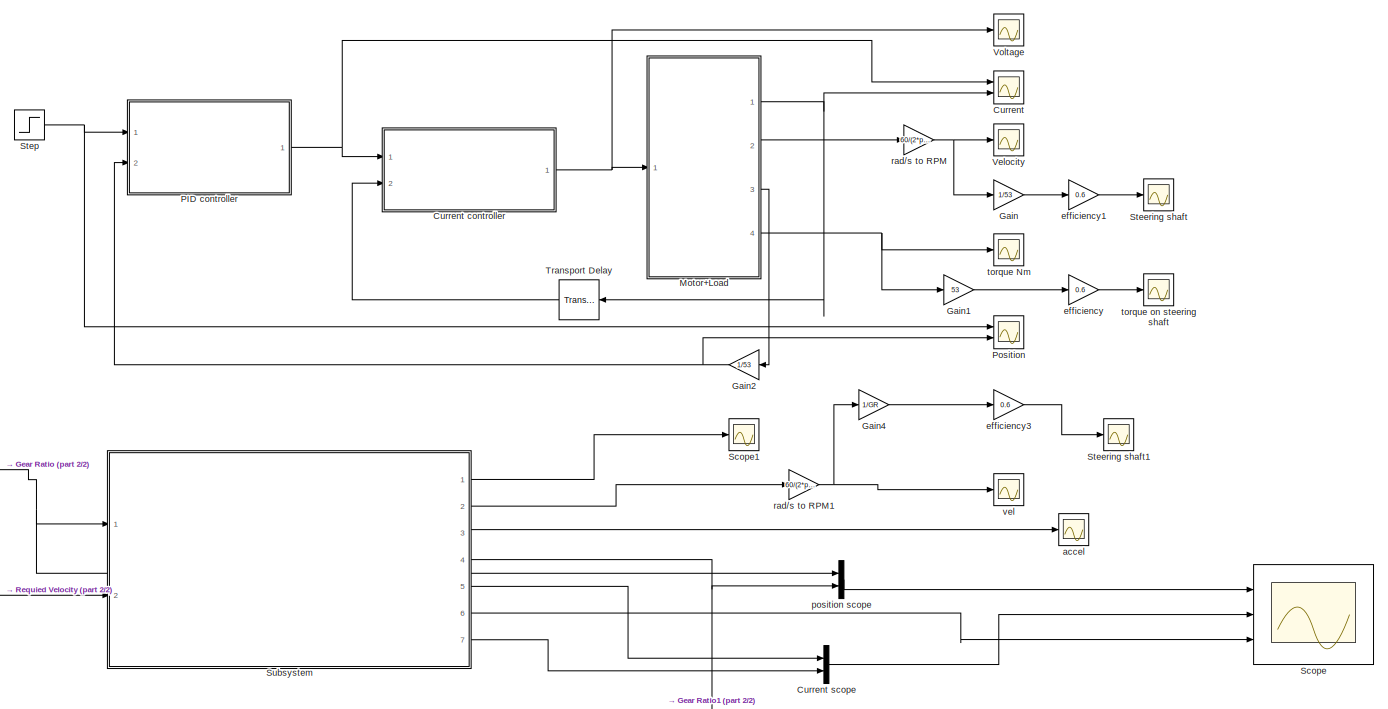
[diagram: root canvas - part 1/2, most of the canvas]
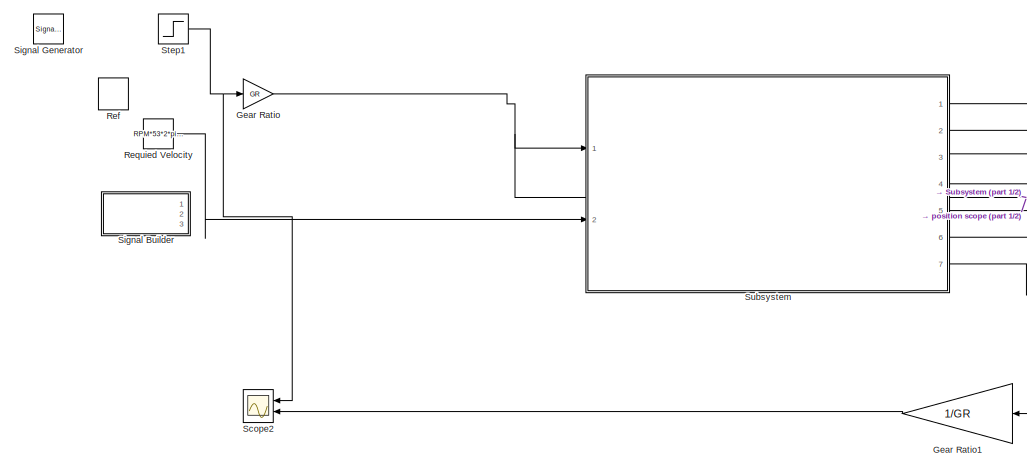
[diagram: root canvas - part 2/2, bottom left region]
MODEL slx_9b552c95322c
KIND model
CONFIG AbsTol = auto
CONFIG EnableMultiTasking = off
CONFIG FixedStep = auto
CONFIG MaxStep = auto
CONFIG MinStep = auto
CONFIG RelTol = 1e-3
CONFIG SampleTimeConstraint = Unconstrained
CONFIG Solver = VariableStepAuto
CONFIG SolverName = VariableStepAuto
CONFIG StartTime = 0.0
CONFIG StopTime = 5
BLOCK [Scope] Current
  Floating = off
  NumInputPorts = 2
  Ports = [2]
  ScopeSpecificationString = Simulink.scopes.TimeScopeBlockCfg('CurrentConfiguration', extmgr.ConfigurationSet(extmgr.Configuration('Core','General UI',true),extmgr.Configuration('Core','Source UI',true),extmgr.Configuration('Sources','WiredSimulink',true,'DataLoggingVariableName','ScopeData2'),extmgr.Configuration('Visuals','Time Domain',true,'SerializedDisplays',{struct('MinYLimReal','-9.0625','MaxYLimReal','9.0625','YLabel...<+1521ch>
BLOCK [SubSystem] Current controller
  Ports = [2, 1]
  RequestExecContextInheritance = off
BLOCK [Sum] Current controller/Add
  IconShape = rectangular
  Inputs = +-
  Ports = [2, 1]
BLOCK [Sum] Current controller/Add1
  IconShape = rectangular
  Inputs = +-
  Ports = [2, 1]
BLOCK [Sum] Current controller/Add2
  IconShape = rectangular
  Ports = [2, 1]
BLOCK [Sum] Current controller/Add3
  IconShape = rectangular
  Inputs = +-
  NameLocation = top
  Ports = [2, 1]
BLOCK [Integrator] Current controller/Integrator
  Ports = [1, 1]
BLOCK [Gain] Current controller/K_I SI1
  Gain = 2
BLOCK [Gain] Current controller/K_P SI
  Gain = 2
BLOCK [Inport] Current controller/Motor actual current
  Port = 2
BLOCK [Saturate] Current controller/Saturation
  LowerLimit = -24
  UpperLimit = 24
BLOCK [Inport] Current controller/current set
BLOCK [Gain] Current controller/gain
  Gain = 3
  NameLocation = top
BLOCK [Outport] Current controller/voltage
BLOCK [Mux] Current scope
  DisplayOption = bar
  Inputs = 2
  Ports = [2, 1]
BLOCK [Gain] Gain
  Gain = 1/53
BLOCK [Gain] Gain1
  Gain = 53
BLOCK [Gain] Gain2
  Gain = 1/53
  NameLocation = top
BLOCK [Gain] Gain4
  Gain = 1/GR
BLOCK [Gain] Gear Ratio
  Gain = GR
BLOCK [Gain] Gear Ratio1
  Gain = 1/GR
  NameLocation = top
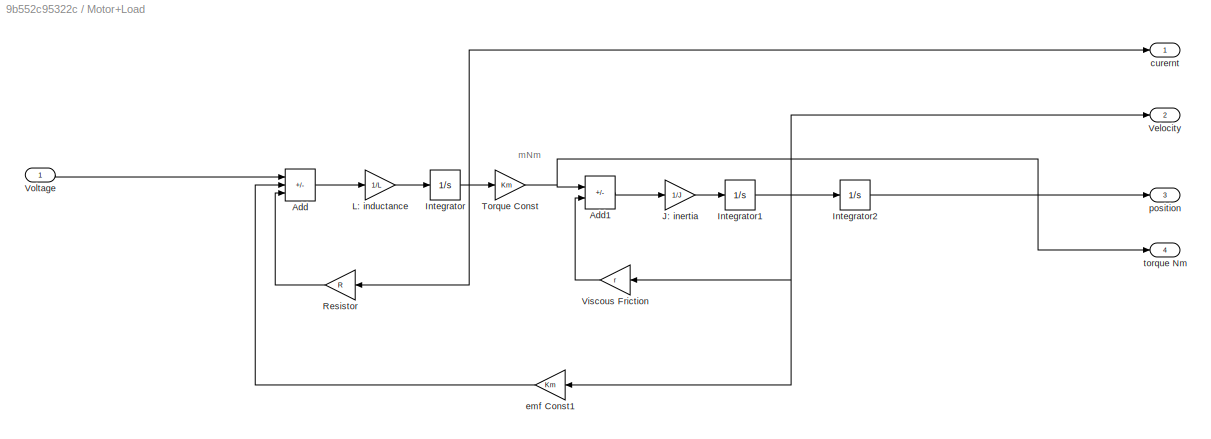
BLOCK [SubSystem] Motor+Load
  Ports = [1, 4]
  RequestExecContextInheritance = off
BLOCK [Sum] Motor+Load/Add
  IconShape = rectangular
  Inputs = +--
  Ports = [3, 1]
BLOCK [Sum] Motor+Load/Add1
  IconShape = rectangular
  Inputs = +-
  Ports = [2, 1]
BLOCK [Integrator] Motor+Load/Integrator
  Ports = [1, 1]
BLOCK [Integrator] Motor+Load/Integrator1
  Ports = [1, 1]
BLOCK [Integrator] Motor+Load/Integrator2
  Ports = [1, 1]
BLOCK [Gain] Motor+Load/J: inertia
  Gain = 1/J
BLOCK [Gain] Motor+Load/L: inductance
  Gain = 1/L
BLOCK [Gain] Motor+Load/Resistor
  Gain = R
  NameLocation = top
BLOCK [Gain] Motor+Load/Torque Const
  Gain = Km
BLOCK [Outport] Motor+Load/Velocity
  Port = 2
BLOCK [Gain] Motor+Load/Viscous Friction
  Gain = r
  NameLocation = top
BLOCK [Inport] Motor+Load/Voltage
BLOCK [Outport] Motor+Load/curernt
BLOCK [Gain] Motor+Load/emf Const1
  Gain = Km
  NameLocation = top
BLOCK [Outport] Motor+Load/position
  Port = 3
BLOCK [Outport] Motor+Load/torque Nm
  Port = 4
BLOCK [SubSystem] PID controller
  Ports = [2, 1]
  RequestExecContextInheritance = off
BLOCK [Sum] PID controller/Add
  IconShape = rectangular
  Inputs = +-
  Ports = [2, 1]
BLOCK [Sum] PID controller/Add1
  IconShape = rectangular
  Inputs = +-
  Ports = [2, 1]
BLOCK [Sum] PID controller/Add2
  IconShape = rectangular
  Ports = [2, 1]
BLOCK [Sum] PID controller/Add3
  IconShape = rectangular
  Inputs = +-
  NameLocation = top
  Ports = [2, 1]
BLOCK [Outport] PID controller/Current out
BLOCK [Integrator] PID controller/Integrator
  Ports = [1, 1]
BLOCK [Gain] PID controller/K_I po
  Gain = 25
BLOCK [Gain] PID controller/K_P po
  Gain = 30
BLOCK [Inport] PID controller/Ref position
BLOCK [Saturate] PID controller/Saturation
  LowerLimit = -7.25
  UpperLimit = 7.25
BLOCK [Inport] PID controller/feedback position
  Port = 2
BLOCK [Gain] PID controller/gain
  NameLocation = top
BLOCK [Scope] Position
  Floating = off
  NumInputPorts = 2
  Ports = [2]
  ScopeSpecificationString = Simulink.scopes.TimeScopeBlockCfg('CurrentConfiguration', extmgr.ConfigurationSet(extmgr.Configuration('Core','General UI',true),extmgr.Configuration('Core','Source UI',true),extmgr.Configuration('Sources','WiredSimulink',true),extmgr.Configuration('Visuals','Time Domain',true,'SerializedDisplays',{struct('MinYLimReal','-0.5599','MaxYLimReal','5.03914','YLabelReal','','MinYLimMag','0.00000','MaxYL...<+1693ch>
BLOCK [DiscretePulseGenerator] Ref
  Amplitude = 242/180*pi
  Period = 5
  Ports = [0, 1]
  PulseType = Time based
  PulseWidth = 50
BLOCK [Constant] Requied Velocity
  Value = RPM*53*2*pi/60
BLOCK [Scope] Scope
  Floating = off
  NumInputPorts = 3
  Ports = [3]
  ScopeSpecificationString = Simulink.scopes.TimeScopeBlockCfg('CurrentConfiguration', extmgr.ConfigurationSet(extmgr.Configuration('Core','General UI',true),extmgr.Configuration('Core','Source UI',true),extmgr.Configuration('Sources','WiredSimulink',true,'DataLoggingVariableName','ScopeData2'),extmgr.Configuration('Visuals','Time Domain',true,'SerializedDisplays',{struct('MinYLimReal','-7.99695','MaxYLimReal','59.85227','YLa...<+3275ch>
BLOCK [Scope] Scope1
  Floating = off
  NumInputPorts = 1
  Ports = [1]
  ScopeSpecificationString = Simulink.scopes.TimeScopeBlockCfg('CurrentConfiguration', extmgr.ConfigurationSet(extmgr.Configuration('Core','General UI',true),extmgr.Configuration('Core','Source UI',true),extmgr.Configuration('Sources','WiredSimulink',true,'DataLoggingVariableName','ScopeData1'),extmgr.Configuration('Visuals','Time Domain',true,'SerializedDisplays',{struct('MinYLimReal','-8.31172','MaxYLimReal','27.59019','YLa...<+1429ch>
BLOCK [Scope] Scope2
  Floating = off
  NameLocation = top
  NumInputPorts = 2
  Ports = [2]
  ScopeSpecificationString = Simulink.scopes.TimeScopeBlockCfg('CurrentConfiguration', extmgr.ConfigurationSet(extmgr.Configuration('Core','General UI',true),extmgr.Configuration('Core','Source UI',true),extmgr.Configuration('Sources','WiredSimulink',true,'DataLoggingVariableName','ScopeData1'),extmgr.Configuration('Visuals','Time Domain',true,'SerializedDisplays',{struct('MinYLimReal','-2.61938','MaxYLimReal','2.61973','YLab...<+1444ch>
BLOCK [SubSystem] Signal Builder
  ClipboardFcn = sigbuilder_block('clipboard');
  CloseFcn = sigbuilder_block('close');
  ContinueFcn = sigbuilder_block('continue');
  CopyFcn = sigbuilder_block('copy');
  DeleteFcn = sigbuilder_block('delete');
  LoadFcn = sigbuilder_block('load');
  MaskHideContents = on
  ModelCloseFcn = sigbuilder_block('modelClose');
  NameChangeFcn = sigbuilder_block('namechange');
  OpenFcn = sigbuilder_block('open',[437.6 199.2 550.4 400 ]);
  PauseFcn = sigbuilder_block('pause');
  Ports = [0, 3]
  PreSaveFcn = sigbuilder_block('preSave');
  RequestExecContextInheritance = off
  StartFcn = sigbuilder_block('start');
  StopFcn = sigbuilder_block('stop');
  Tag = STV Subsys
BLOCK [Demux] Signal Builder/Demux
  DisplayOption = none
  Outputs = 3
  Ports = [1, 3]
  Tag = STV Demux
BLOCK [FromWorkspace] Signal Builder/FromWs
  Tag = STV FromWs
  VariableName = tuvar
BLOCK [Outport] Signal Builder/Signal 1
  Tag = STV Outport
BLOCK [Outport] Signal Builder/Signal 2
  Port = 2
  Tag = STV Outport
BLOCK [Outport] Signal Builder/Signal 3
  Port = 3
  Tag = STV Outport
BLOCK [SignalGenerator] Signal Generator
  Amplitude = 120/180*pi
  Frequency = 0.2
  Ports = [0, 1]
BLOCK [Scope] Steering shaft
  Floating = off
  NumInputPorts = 1
  Ports = [1]
  ScopeSpecificationString = Simulink.scopes.TimeScopeBlockCfg('CurrentConfiguration', extmgr.ConfigurationSet(extmgr.Configuration('Core','General UI',true),extmgr.Configuration('Core','Source UI',true),extmgr.Configuration('Sources','WiredSimulink',true,'DataLoggingVariableName','ScopeData6'),extmgr.Configuration('Visuals','Time Domain',true,'SerializedDisplays',{struct('MinYLimReal','-17.42391','MaxYLimReal','50.0732','YLa...<+1410ch>
BLOCK [Scope] Steering shaft1
  Floating = off
  NumInputPorts = 1
  Ports = [1]
  ScopeSpecificationString = Simulink.scopes.TimeScopeBlockCfg('CurrentConfiguration', extmgr.ConfigurationSet(extmgr.Configuration('Core','General UI',true),extmgr.Configuration('Core','Source UI',true),extmgr.Configuration('Sources','WiredSimulink',true,'DataLoggingVariableName','ScopeData4'),extmgr.Configuration('Visuals','Time Domain',true,'SerializedDisplays',{struct('MinYLimReal','-8.31812','MaxYLimReal','52.33145','YLa...<+1424ch>
BLOCK [Step] Step
  After = 242/180*pi
  SampleTime = 0
  Time = 0
BLOCK [Step] Step1
  SampleTime = 0
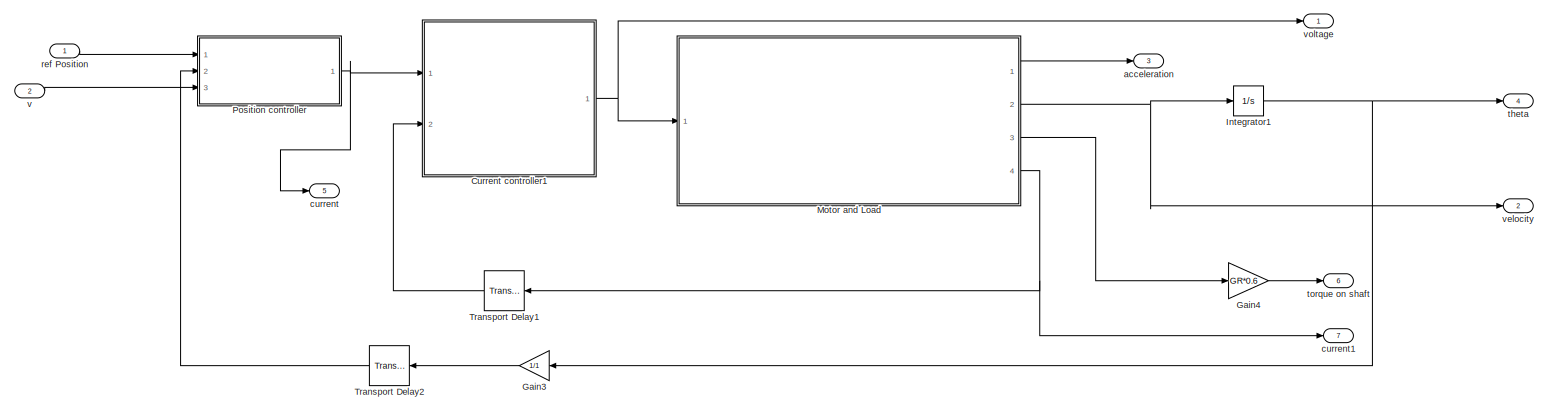
[diagram: Subsystem - part 1/1, most of the canvas]
BLOCK [SubSystem] Subsystem
  Ports = [2, 7]
  RequestExecContextInheritance = off
BLOCK [SubSystem] Subsystem/Current controller1
  Ports = [2, 1]
  RequestExecContextInheritance = off
BLOCK [TransferFcn] Subsystem/Current controller1/AW scheme
  Commented = on
  Denominator = [kp_I ki_I]
  NameLocation = top
  Numerator = [-ki_I]
BLOCK [Sum] Subsystem/Current controller1/Add
  IconShape = rectangular
  Inputs = +-
  Ports = [2, 1]
BLOCK [Sum] Subsystem/Current controller1/Add4
  IconShape = rectangular
  Inputs = +-
  Ports = [2, 1]
BLOCK [Gain] Subsystem/Current controller1/K_P SI1
  Commented = on
  Gain = kp_I
BLOCK [Inport] Subsystem/Current controller1/Motor actual current
  Port = 2
BLOCK [SubSystem] Subsystem/Current controller1/PI controller with AW
  Ports = [1, 1]
  RequestExecContextInheritance = off
BLOCK [Sum] Subsystem/Current controller1/PI controller with AW/Add1
  IconShape = rectangular
  Inputs = +-
  Ports = [2, 1]
BLOCK [Sum] Subsystem/Current controller1/PI controller with AW/Add2
  IconShape = rectangular
  Ports = [2, 1]
BLOCK [Sum] Subsystem/Current controller1/PI controller with AW/Add3
  IconShape = rectangular
  Inputs = +-
  NameLocation = top
  Ports = [2, 1]
BLOCK [Inport] Subsystem/Current controller1/PI controller with AW/Current Error
BLOCK [Integrator] Subsystem/Current controller1/PI controller with AW/Integrator
  Ports = [1, 1]
BLOCK [Gain] Subsystem/Current controller1/PI controller with AW/K_I SI1
  Gain = ki_I
BLOCK [Gain] Subsystem/Current controller1/PI controller with AW/K_P SI
  Gain = kp_I
BLOCK [Saturate] Subsystem/Current controller1/PI controller with AW/Saturation
  LowerLimit = -maxV
  UpperLimit = maxV
BLOCK [Outport] Subsystem/Current controller1/PI controller with AW/Voltage Output
BLOCK [Gain] Subsystem/Current controller1/PI controller with AW/gain
  Gain = ke_I
  NameLocation = top
BLOCK [Inport] Subsystem/Current controller1/current set
BLOCK [Outport] Subsystem/Current controller1/voltage
BLOCK [Gain] Subsystem/Gain3
  Gain = 1/1
  NameLocation = top
BLOCK [Gain] Subsystem/Gain4
  Gain = GR*0.6
BLOCK [Integrator] Subsystem/Integrator1
  Ports = [1, 1]
BLOCK [SubSystem] Subsystem/Motor and Load
  Ports = [1, 4]
  RequestExecContextInheritance = off
BLOCK [Outport] Subsystem/Motor and Load/Acceleration
BLOCK [Outport] Subsystem/Motor and Load/Current out
  Port = 4
BLOCK [Gain] Subsystem/Motor and Load/Gain
  Gain = Ke
  NameLocation = top
BLOCK [Gain] Subsystem/Motor and Load/Gain1
  Gain = Kt
BLOCK [SubSystem] Subsystem/Motor and Load/Load
  Ports = [1, 2]
  RequestExecContextInheritance = off
BLOCK [Outport] Subsystem/Motor and Load/Load/Acceleration
BLOCK [Sum] Subsystem/Motor and Load/Load/Add1
  IconShape = rectangular
  Inputs = +--
  Ports = [3, 1]
BLOCK [Constant] Subsystem/Motor and Load/Load/Fz
  NameLocation = top
  Value = 2550
BLOCK [Gain] Subsystem/Motor and Load/Load/Gain
  Commented = on
  Gain = 0
  NameLocation = top
BLOCK [Gain] Subsystem/Motor and Load/Load/Gain2
  Gain = r
  NameLocation = top
BLOCK [Gain] Subsystem/Motor and Load/Load/Gain3
  Gain = 1/J
BLOCK [Integrator] Subsystem/Motor and Load/Load/Integrator
  Ports = [1, 1]
BLOCK [Inport] Subsystem/Motor and Load/Load/Motor Torque
BLOCK [Scope] Subsystem/Motor and Load/Load/Scope
  Floating = off
  NumInputPorts = 3
  Ports = [3]
  ScopeSpecificationString = Simulink.scopes.TimeScopeBlockCfg('CurrentConfiguration', extmgr.ConfigurationSet(extmgr.Configuration('Core','General UI',true),extmgr.Configuration('Core','Source UI',true),extmgr.Configuration('Sources','WiredSimulink',true,'DataLoggingVariableName','ScopeData1'),extmgr.Configuration('Visuals','Time Domain',true,'SerializedDisplays',{struct('MinYLimReal','0.04422','MaxYLimReal','0.16024','YLabe...<+2858ch>
BLOCK [Scope] Subsystem/Motor and Load/Load/Scope1
  Floating = off
  NumInputPorts = 1
  Ports = [1]
  ScopeSpecificationString = Simulink.scopes.TimeScopeBlockCfg('CurrentConfiguration', extmgr.ConfigurationSet(extmgr.Configuration('Core','General UI',true),extmgr.Configuration('Core','Source UI',true),extmgr.Configuration('Sources','WiredSimulink',true,'DataLoggingVariableName','ScopeData2'),extmgr.Configuration('Visuals','Time Domain',true,'SerializedDisplays',{struct('MinYLimReal','-0.96042','MaxYLimReal','9.14375','YLab...<+1370ch>
BLOCK [SubSystem] Subsystem/Motor and Load/Load/Subsystem
  NameLocation = top
  Ports = [1, 4]
  RequestExecContextInheritance = off
BLOCK [Sum] Subsystem/Motor and Load/Load/Subsystem/Add
  IconShape = rectangular
  NameLocation = top
  Ports = [2, 1]
BLOCK [Outport] Subsystem/Motor and Load/Load/Subsystem/CarVel
  Port = 3
BLOCK [Inport] Subsystem/Motor and Load/Load/Subsystem/Fz
BLOCK [Gain] Subsystem/Motor and Load/Load/Subsystem/Gain
  Gain = 1/GR
  NameLocation = top
BLOCK [SubSystem] Subsystem/Motor and Load/Load/Subsystem/MATLAB Function
  ErrorFcn = Stateflow.Translate.translate
  NameLocation = top
  PermitHierarchicalResolution = ExplicitOnly
  Ports = [2, 3]
  RequestExecContextInheritance = off
  SFBlockType = MATLAB Function
  TreatAsAtomicUnit = on
BLOCK [Demux] Subsystem/Motor and Load/Load/Subsystem/MATLAB Function/ Demux 
  Outputs = 1
  Ports = [1, 1]
BLOCK [S-Function] Subsystem/Motor and Load/Load/Subsystem/MATLAB Function/ SFunction 
  EnableBusSupport = on
  FunctionName = sf_sfun
  PortCounts = [2 4]
  Ports = [2, 4]
  SFcnIsStateOwnerBlock = off
  SFunctionDeploymentMode = off
  Tag = Stateflow S-Function 2
BLOCK [Terminator] Subsystem/Motor and Load/Load/Subsystem/MATLAB Function/ Terminator 
BLOCK [Inport] Subsystem/Motor and Load/Load/Subsystem/MATLAB Function/CarVelocity
  Port = 2
BLOCK [Inport] Subsystem/Motor and Load/Load/Subsystem/MATLAB Function/Fz
BLOCK [Outport] Subsystem/Motor and Load/Load/Subsystem/MATLAB Function/frCoeff
  Port = 2
BLOCK [Outport] Subsystem/Motor and Load/Load/Subsystem/MATLAB Function/frForce
  Port = 3
BLOCK [Outport] Subsystem/Motor and Load/Load/Subsystem/MATLAB Function/t_fr
BLOCK [SubSystem] Subsystem/Motor and Load/Load/Subsystem/Signal Builder
  ClipboardFcn = sigbuilder_block('clipboard');
  CloseFcn = sigbuilder_block('close');
  ContinueFcn = sigbuilder_block('continue');
  CopyFcn = sigbuilder_block('copy');
  DeleteFcn = sigbuilder_block('delete');
  LoadFcn = sigbuilder_block('load');
  MaskHideContents = on
  ModelCloseFcn = sigbuilder_block('modelClose');
  NameChangeFcn = sigbuilder_block('namechange');
  NameLocation = top
  OpenFcn = sigbuilder_block('open',[437.6 199.2 550.4 400 ]);
  PauseFcn = sigbuilder_block('pause');
  Ports = [0, 2]
  PreSaveFcn = sigbuilder_block('preSave');
  RequestExecContextInheritance = off
  StartFcn = sigbuilder_block('start');
  StopFcn = sigbuilder_block('stop');
  Tag = STV Subsys
BLOCK [Demux] Subsystem/Motor and Load/Load/Subsystem/Signal Builder/Demux
  DisplayOption = none
  Outputs = 2
  Ports = [1, 2]
  Tag = STV Demux
BLOCK [FromWorkspace] Subsystem/Motor and Load/Load/Subsystem/Signal Builder/FromWs
  Tag = STV FromWs
  VariableName = tuvar
BLOCK [Outport] Subsystem/Motor and Load/Load/Subsystem/Signal Builder/Signal 1
  Tag = STV Outport
BLOCK [Outport] Subsystem/Motor and Load/Load/Subsystem/Signal Builder/Signal 2
  Port = 2
  Tag = STV Outport
BLOCK [Outport] Subsystem/Motor and Load/Load/Subsystem/frCoeff
  Port = 2
BLOCK [Outport] Subsystem/Motor and Load/Load/Subsystem/frForce
  Port = 4
BLOCK [Outport] Subsystem/Motor and Load/Load/Subsystem/t_fr
BLOCK [Outport] Subsystem/Motor and Load/Load/Velocity
  Port = 2
BLOCK [Constant] Subsystem/Motor and Load/Load/friction torque
  Commented = on
  NameLocation = top
  Value = 5/GR
BLOCK [SubSystem] Subsystem/Motor and Load/Motor Model
  Ports = [2, 1]
  RequestExecContextInheritance = off
BLOCK [Sum] Subsystem/Motor and Load/Motor Model/Add
  IconShape = rectangular
  Inputs = +-
  Ports = [2, 1]
BLOCK [Outport] Subsystem/Motor and Load/Motor Model/Current out
BLOCK [Saturate] Subsystem/Motor and Load/Motor Model/Saturation
  LowerLimit = -10/sqrt(2)
  UpperLimit = 10/sqrt(2)
BLOCK [TransferFcn] Subsystem/Motor and Load/Motor Model/Transfer Fcn
  Denominator = [L R]
BLOCK [Inport] Subsystem/Motor and Load/Motor Model/Voltage
BLOCK [Inport] Subsystem/Motor and Load/Motor Model/back emf
  Port = 2
BLOCK [Outport] Subsystem/Motor and Load/Motor Torque
  Port = 3
BLOCK [Outport] Subsystem/Motor and Load/Velocity
  Port = 2
BLOCK [Inport] Subsystem/Motor and Load/Voltage
BLOCK [SubSystem] Subsystem/Position controller
  Ports = [3, 1]
  RequestExecContextInheritance = off
BLOCK [Sum] Subsystem/Position controller/Add
  IconShape = rectangular
  Ports = [2, 1]
BLOCK [Gain] Subsystem/Position controller/Feedforward V gain
  Gain = r/Km
BLOCK [Reference] Subsystem/Position controller/PID  REF=simulink/Continuous/PID Controller
  Commented = on
  Ports = [1, 1]
  SourceBlock = simulink/Continuous/PID Controller
  SourceProductBaseCode = SL
  SourceType = PID 1dof
BLOCK [SubSystem] Subsystem/Position controller/PID + AW
  Ports = [1, 1]
  RequestExecContextInheritance = off
BLOCK [Sum] Subsystem/Position controller/PID + AW/Add
  IconShape = rectangular
  Inputs = +++
  Ports = [3, 1]
BLOCK [TransferFcn] Subsystem/Position controller/PID + AW/D
  Denominator = [1 N]
  Numerator = [kd 0]
BLOCK [Gain] Subsystem/Position controller/PID + AW/Gain
  Gain = ki/kp
  NameLocation = top
BLOCK [Gain] Subsystem/Position controller/PID + AW/I
  Gain = ki
BLOCK [Integrator] Subsystem/Position controller/PID + AW/Integrator
  Ports = [1, 1]
BLOCK [Gain] Subsystem/Position controller/PID + AW/P
  Gain = kp
BLOCK [Saturate] Subsystem/Position controller/PID + AW/Saturation
  LowerLimit = -maxI
  UpperLimit = maxI
BLOCK [Sum] Subsystem/Position controller/PID + AW/Sum
  Inputs = |+-
  NameLocation = left
  Ports = [2, 1]
BLOCK [Sum] Subsystem/Position controller/PID + AW/Sum1
  Inputs = |+-
  Ports = [2, 1]
BLOCK [Outport] Subsystem/Position controller/PID + AW/control effort
BLOCK [Inport] Subsystem/Position controller/PID + AW/error
BLOCK [Scope] Subsystem/Position controller/Scope
  Floating = off
  NumInputPorts = 2
  Ports = [2]
  ScopeSpecificationString = Simulink.scopes.TimeScopeBlockCfg('CurrentConfiguration', extmgr.ConfigurationSet(extmgr.Configuration('Core','General UI',true),extmgr.Configuration('Core','Source UI',true),extmgr.Configuration('Sources','WiredSimulink',true,'DataLoggingVariableName','ScopeData6'),extmgr.Configuration('Visuals','Time Domain',true,'SerializedDisplays',{struct('MinYLimReal','-8.77848','MaxYLimReal','8.83213','YLab...<+1383ch>
BLOCK [Sum] Subsystem/Position controller/Sum
  Inputs = |+-
  Ports = [2, 1]
BLOCK [Outport] Subsystem/Position controller/current
BLOCK [Inport] Subsystem/Position controller/position feedback
  Port = 2
BLOCK [Inport] Subsystem/Position controller/ref Position
BLOCK [Inport] Subsystem/Position controller/v
  Port = 3
BLOCK [TransportDelay] Subsystem/Transport Delay1
  DelayTime = 0.06/1000
  NameLocation = top
  Ports = [1, 1]
BLOCK [TransportDelay] Subsystem/Transport Delay2
  DelayTime = 0.4/1000
  NameLocation = top
  Ports = [1, 1]
BLOCK [Outport] Subsystem/acceleration
  Port = 3
BLOCK [Outport] Subsystem/current
  Port = 5
BLOCK [Outport] Subsystem/current1
  Port = 7
BLOCK [Inport] Subsystem/ref Position
BLOCK [Outport] Subsystem/theta
  Port = 4
BLOCK [Outport] Subsystem/torque on shaft
  Port = 6
BLOCK [Inport] Subsystem/v
  Port = 2
BLOCK [Outport] Subsystem/velocity
  Port = 2
BLOCK [Outport] Subsystem/voltage
BLOCK [TransportDelay] Transport Delay
  DelayTime = 0.06/1000
  NameLocation = top
  Ports = [1, 1]
BLOCK [Scope] Velocity
  Floating = off
  NumInputPorts = 1
  Ports = [1]
  ScopeSpecificationString = Simulink.scopes.TimeScopeBlockCfg('CurrentConfiguration', extmgr.ConfigurationSet(extmgr.Configuration('Core','General UI',true),extmgr.Configuration('Core','Source UI',true),extmgr.Configuration('Sources','WiredSimulink',true,'DataLoggingVariableName','ScopeData1'),extmgr.Configuration('Visuals','Time Domain',true,'SerializedDisplays',{struct('MinYLimReal','-1539.023','MaxYLimReal','4422.89835','...<+1432ch>
BLOCK [Scope] Voltage
  Floating = off
  NumInputPorts = 1
  Ports = [1]
  ScopeSpecificationString = Simulink.scopes.TimeScopeBlockCfg('CurrentConfiguration', extmgr.ConfigurationSet(extmgr.Configuration('Core','General UI',true),extmgr.Configuration('Core','Source UI',true),extmgr.Configuration('Sources','WiredSimulink',true,'DataLoggingVariableName','ScopeData3'),extmgr.Configuration('Visuals','Time Domain',true,'SerializedDisplays',{struct('MinYLimReal','-8.60115','MaxYLimReal','24.59981','YLa...<+1436ch>
BLOCK [Scope] accel
  Floating = off
  NumInputPorts = 1
  Ports = [1]
  ScopeSpecificationString = Simulink.scopes.TimeScopeBlockCfg('CurrentConfiguration', extmgr.ConfigurationSet(extmgr.Configuration('Core','General UI',true),extmgr.Configuration('Core','Source UI',true),extmgr.Configuration('Sources','WiredSimulink',true,'DataLoggingVariableName','ScopeData2'),extmgr.Configuration('Visuals','Time Domain',true,'SerializedDisplays',{struct('MinYLimReal','-10825.83299','MaxYLimReal','8682.67593...<+1441ch>
BLOCK [Gain] efficiency
  Gain = 0.6
BLOCK [Gain] efficiency1
  Gain = 0.6
BLOCK [Gain] efficiency3
  Gain = 0.6
BLOCK [Mux] position scope
  DisplayOption = bar
  Inputs = 2
  Ports = [2, 1]
BLOCK [Gain] rad//s to RPM
  Gain = 60/(2*pi)
BLOCK [Gain] rad//s to RPM1
  Gain = 60/(2*pi)
BLOCK [Scope] torque Nm
  Floating = off
  NumInputPorts = 1
  Ports = [1]
  ScopeSpecificationString = Simulink.scopes.TimeScopeBlockCfg('CurrentConfiguration', extmgr.ConfigurationSet(extmgr.Configuration('Core','General UI',true),extmgr.Configuration('Core','Source UI',true),extmgr.Configuration('Sources','WiredSimulink',true,'DataLoggingVariableName','ScopeData4'),extmgr.Configuration('Visuals','Time Domain',true,'SerializedDisplays',{struct('MinYLimReal','-0.41383','MaxYLimReal','0.41875','YLab...<+1414ch>
BLOCK [Scope] torque on steering shaft
  Floating = off
  NumInputPorts = 1
  Ports = [1]
  ScopeSpecificationString = Simulink.scopes.TimeScopeBlockCfg('CurrentConfiguration', extmgr.ConfigurationSet(extmgr.Configuration('Core','General UI',true),extmgr.Configuration('Core','Source UI',true),extmgr.Configuration('Sources','WiredSimulink',true,'DataLoggingVariableName','ScopeData7'),extmgr.Configuration('Visuals','Time Domain',true,'SerializedDisplays',{struct('MinYLimReal','-13.1599','MaxYLimReal','13.31629','YLa...<+1416ch>
BLOCK [Scope] vel
  Floating = off
  NumInputPorts = 1
  Ports = [1]
  ScopeSpecificationString = Simulink.scopes.TimeScopeBlockCfg('CurrentConfiguration', extmgr.ConfigurationSet(extmgr.Configuration('Core','General UI',true),extmgr.Configuration('Core','Source UI',true),extmgr.Configuration('Sources','WiredSimulink',true,'DataLoggingVariableName','ScopeData1'),extmgr.Configuration('Visuals','Time Domain',true,'SerializedDisplays',{struct('MinYLimReal','-3211.90307','MaxYLimReal','3319.60547'...<+1463ch>
ANNOTATION Current controller: e_s
ANNOTATION Motor+Load: mNm
ANNOTATION PID controller: e_s
ANNOTATION Subsystem/Current controller1/PI controller with AW: e_s
LINE Current controller/Add1:1 -> Current controller/Integrator:1
NET Current controller/Add2:1 -> Current controller/Add3:1, Current controller/Saturation:1
LINE Current controller/Add3:1 -> Current controller/gain:1
NET Current controller/Add:1 -> Current controller/K_I SI1:1, Current controller/K_P SI:1
LINE Current controller/Integrator:1 -> Current controller/Add2:2
LINE Current controller/K_I SI1:1 -> Current controller/Add1:1
LINE Current controller/K_P SI:1 -> Current controller/Add2:1
LINE Current controller/Motor actual current:1 -> Current controller/Add:2
NET Current controller/Saturation:1 -> Current controller/Add3:2, Current controller/voltage:1
LINE Current controller/current set:1 -> Current controller/Add:1
LINE Current controller/gain:1 -> Current controller/Add1:2
NET Current controller:1 -> Motor+Load:1, Voltage:1
LINE Current scope:1 -> Scope:2
LINE Gain1:1 -> efficiency:1
NET Gain2:1 -> PID controller:2, Position:2
LINE Gain4:1 -> efficiency3:1
LINE Gain:1 -> efficiency1:1
LINE Gear Ratio1:1 -> Scope2:2
NET Gear Ratio:1 -> Subsystem:1, position scope:1
LINE Motor+Load/Add1:1 -> Motor+Load/J: inertia:1
LINE Motor+Load/Add:1 -> Motor+Load/L: inductance:1
NET Motor+Load/Integrator1:1 -> Motor+Load/Integrator2:1, Motor+Load/Velocity:1, Motor+Load/Viscous Friction:1, Motor+Load/emf Const1:1
LINE Motor+Load/Integrator2:1 -> Motor+Load/position:1
NET Motor+Load/Integrator:1 -> Motor+Load/Resistor:1, Motor+Load/Torque Const:1, Motor+Load/curernt:1
LINE Motor+Load/J: inertia:1 -> Motor+Load/Integrator1:1
LINE Motor+Load/L: inductance:1 -> Motor+Load/Integrator:1
LINE Motor+Load/Resistor:1 -> Motor+Load/Add:3
NET Motor+Load/Torque Const:1 -> Motor+Load/Add1:1, Motor+Load/torque Nm:1
LINE Motor+Load/Viscous Friction:1 -> Motor+Load/Add1:2
LINE Motor+Load/Voltage:1 -> Motor+Load/Add:1
LINE Motor+Load/emf Const1:1 -> Motor+Load/Add:2
NET Motor+Load:1 -> Current:2, Transport Delay:1
LINE Motor+Load:2 -> rad//s to RPM:1
LINE Motor+Load:3 -> Gain2:1
NET Motor+Load:4 -> Gain1:1, torque Nm:1
LINE PID controller/Add1:1 -> PID controller/Integrator:1
NET PID controller/Add2:1 -> PID controller/Add3:1, PID controller/Saturation:1
LINE PID controller/Add3:1 -> PID controller/gain:1
NET PID controller/Add:1 -> PID controller/K_I po:1, PID controller/K_P po:1
LINE PID controller/Integrator:1 -> PID controller/Add2:2
LINE PID controller/K_I po:1 -> PID controller/Add1:1
LINE PID controller/K_P po:1 -> PID controller/Add2:1
LINE PID controller/Ref position:1 -> PID controller/Add:1
NET PID controller/Saturation:1 -> PID controller/Add3:2, PID controller/Current out:1
LINE PID controller/feedback position:1 -> PID controller/Add:2
LINE PID controller/gain:1 -> PID controller/Add1:2
NET PID controller:1 -> Current controller:1, Current:1
LINE Requied Velocity:1 -> Subsystem:2
NET Step1:1 -> Gear Ratio:1, Scope2:1
NET Step:1 -> PID controller:1, Position:1
LINE Subsystem/Current controller1/Add4:1 -> Subsystem/Current controller1/K_P SI1:1
LINE Subsystem/Current controller1/Add:1 -> Subsystem/Current controller1/PI controller with AW:1
NET Subsystem/Current controller1/Motor actual current:1 -> Subsystem/Current controller1/Add4:2, Subsystem/Current controller1/Add:2
LINE Subsystem/Current controller1/PI controller with AW/Add1:1 -> Subsystem/Current controller1/PI controller with AW/Integrator:1
NET Subsystem/Current controller1/PI controller with AW/Add2:1 -> Subsystem/Current controller1/PI controller with AW/Add3:1, Subsystem/Current controller1/PI controller with AW/Saturation:1
LINE Subsystem/Current controller1/PI controller with AW/Add3:1 -> Subsystem/Current controller1/PI controller with AW/gain:1
NET Subsystem/Current controller1/PI controller with AW/Current Error:1 -> Subsystem/Current controller1/PI controller with AW/K_I SI1:1, Subsystem/Current controller1/PI controller with AW/K_P SI:1
LINE Subsystem/Current controller1/PI controller with AW/Integrator:1 -> Subsystem/Current controller1/PI controller with AW/Add2:2
LINE Subsystem/Current controller1/PI controller with AW/K_I SI1:1 -> Subsystem/Current controller1/PI controller with AW/Add1:1
LINE Subsystem/Current controller1/PI controller with AW/K_P SI:1 -> Subsystem/Current controller1/PI controller with AW/Add2:1
NET Subsystem/Current controller1/PI controller with AW/Saturation:1 -> Subsystem/Current controller1/PI controller with AW/Add3:2, Subsystem/Current controller1/PI controller with AW/Voltage Output:1
LINE Subsystem/Current controller1/PI controller with AW/gain:1 -> Subsystem/Current controller1/PI controller with AW/Add1:2
LINE Subsystem/Current controller1/PI controller with AW:1 -> Subsystem/Current controller1/voltage:1
NET Subsystem/Current controller1/current set:1 -> Subsystem/Current controller1/Add4:1, Subsystem/Current controller1/Add:1
NET Subsystem/Current controller1:1 -> Subsystem/Motor and Load:1, Subsystem/voltage:1
LINE Subsystem/Gain3:1 -> Subsystem/Transport Delay2:1
LINE Subsystem/Gain4:1 -> Subsystem/torque on shaft:1
NET Subsystem/Integrator1:1 -> Subsystem/Gain3:1, Subsystem/theta:1
NET Subsystem/Motor and Load/Gain1:1 -> Subsystem/Motor and Load/Load:1, Subsystem/Motor and Load/Motor Torque:1
LINE Subsystem/Motor and Load/Gain:1 -> Subsystem/Motor and Load/Motor Model:2
LINE Subsystem/Motor and Load/Load/Add1:1 -> Subsystem/Motor and Load/Load/Gain3:1
LINE Subsystem/Motor and Load/Load/Fz:1 -> Subsystem/Motor and Load/Load/Subsystem:1
LINE Subsystem/Motor and Load/Load/Gain2:1 -> Subsystem/Motor and Load/Load/Add1:2
NET Subsystem/Motor and Load/Load/Gain3:1 -> Subsystem/Motor and Load/Load/Acceleration:1, Subsystem/Motor and Load/Load/Integrator:1
NET Subsystem/Motor and Load/Load/Integrator:1 -> Subsystem/Motor and Load/Load/Gain2:1, Subsystem/Motor and Load/Load/Velocity:1
LINE Subsystem/Motor and Load/Load/Motor Torque:1 -> Subsystem/Motor and Load/Load/Add1:1
NET Subsystem/Motor and Load/Load/Subsystem/Add:1 -> Subsystem/Motor and Load/Load/Subsystem/CarVel:1, Subsystem/Motor and Load/Load/Subsystem/MATLAB Function:2
LINE Subsystem/Motor and Load/Load/Subsystem/Fz:1 -> Subsystem/Motor and Load/Load/Subsystem/MATLAB Function:1
LINE Subsystem/Motor and Load/Load/Subsystem/Gain:1 -> Subsystem/Motor and Load/Load/Subsystem/t_fr:1
LINE Subsystem/Motor and Load/Load/Subsystem/MATLAB Function:1 -> Subsystem/Motor and Load/Load/Subsystem/Gain:1
LINE Subsystem/Motor and Load/Load/Subsystem/MATLAB Function:2 -> Subsystem/Motor and Load/Load/Subsystem/frCoeff:1
LINE Subsystem/Motor and Load/Load/Subsystem/MATLAB Function:3 -> Subsystem/Motor and Load/Load/Subsystem/frForce:1
LINE Subsystem/Motor and Load/Load/Subsystem/Signal Builder:1 -> Subsystem/Motor and Load/Load/Subsystem/Add:1
LINE Subsystem/Motor and Load/Load/Subsystem/Signal Builder:2 -> Subsystem/Motor and Load/Load/Subsystem/Add:2
NET Subsystem/Motor and Load/Load/Subsystem:1 -> Subsystem/Motor and Load/Load/Add1:3, Subsystem/Motor and Load/Load/Scope:1
LINE Subsystem/Motor and Load/Load/Subsystem:2 -> Subsystem/Motor and Load/Load/Scope:2
LINE Subsystem/Motor and Load/Load/Subsystem:3 -> Subsystem/Motor and Load/Load/Scope1:1
LINE Subsystem/Motor and Load/Load/Subsystem:4 -> Subsystem/Motor and Load/Load/Scope:3
LINE Subsystem/Motor and Load/Load/friction torque:1 -> Subsystem/Motor and Load/Load/Gain:1
LINE Subsystem/Motor and Load/Load:1 -> Subsystem/Motor and Load/Acceleration:1
NET Subsystem/Motor and Load/Load:2 -> Subsystem/Motor and Load/Gain:1, Subsystem/Motor and Load/Velocity:1
LINE Subsystem/Motor and Load/Motor Model/Add:1 -> Subsystem/Motor and Load/Motor Model/Transfer Fcn:1
LINE Subsystem/Motor and Load/Motor Model/Saturation:1 -> Subsystem/Motor and Load/Motor Model/Current out:1
LINE Subsystem/Motor and Load/Motor Model/Transfer Fcn:1 -> Subsystem/Motor and Load/Motor Model/Saturation:1
LINE Subsystem/Motor and Load/Motor Model/Voltage:1 -> Subsystem/Motor and Load/Motor Model/Add:1
LINE Subsystem/Motor and Load/Motor Model/back emf:1 -> Subsystem/Motor and Load/Motor Model/Add:2
NET Subsystem/Motor and Load/Motor Model:1 -> Subsystem/Motor and Load/Current out:1, Subsystem/Motor and Load/Gain1:1
LINE Subsystem/Motor and Load/Voltage:1 -> Subsystem/Motor and Load/Motor Model:1
LINE Subsystem/Motor and Load:1 -> Subsystem/acceleration:1
NET Subsystem/Motor and Load:2 -> Subsystem/Integrator1:1, Subsystem/velocity:1
LINE Subsystem/Motor and Load:3 -> Subsystem/Gain4:1
NET Subsystem/Motor and Load:4 -> Subsystem/Transport Delay1:1, Subsystem/current1:1
NET Subsystem/Position controller/Add:1 -> Subsystem/Position controller/Scope:1, Subsystem/Position controller/current:1
NET Subsystem/Position controller/Feedforward V gain:1 -> Subsystem/Position controller/Add:1, Subsystem/Position controller/Scope:2
NET Subsystem/Position controller/PID + AW/Add:1 -> Subsystem/Position controller/PID + AW/Saturation:1, Subsystem/Position controller/PID + AW/Sum:1
LINE Subsystem/Position controller/PID + AW/D:1 -> Subsystem/Position controller/PID + AW/Add:2
LINE Subsystem/Position controller/PID + AW/Gain:1 -> Subsystem/Position controller/PID + AW/Sum1:2
LINE Subsystem/Position controller/PID + AW/I:1 -> Subsystem/Position controller/PID + AW/Sum1:1
LINE Subsystem/Position controller/PID + AW/Integrator:1 -> Subsystem/Position controller/PID + AW/Add:3
LINE Subsystem/Position controller/PID + AW/P:1 -> Subsystem/Position controller/PID + AW/Add:1
NET Subsystem/Position controller/PID + AW/Saturation:1 -> Subsystem/Position controller/PID + AW/Sum:2, Subsystem/Position controller/PID + AW/control effort:1
LINE Subsystem/Position controller/PID + AW/Sum1:1 -> Subsystem/Position controller/PID + AW/Integrator:1
LINE Subsystem/Position controller/PID + AW/Sum:1 -> Subsystem/Position controller/PID + AW/Gain:1
NET Subsystem/Position controller/PID + AW/error:1 -> Subsystem/Position controller/PID + AW/D:1, Subsystem/Position controller/PID + AW/I:1, Subsystem/Position controller/PID + AW/P:1
LINE Subsystem/Position controller/PID + AW:1 -> Subsystem/Position controller/Add:2
LINE Subsystem/Position controller/Sum:1 -> Subsystem/Position controller/PID + AW:1
LINE Subsystem/Position controller/position feedback:1 -> Subsystem/Position controller/Sum:2
LINE Subsystem/Position controller/ref Position:1 -> Subsystem/Position controller/Sum:1
LINE Subsystem/Position controller/v:1 -> Subsystem/Position controller/Feedforward V gain:1
NET Subsystem/Position controller:1 -> Subsystem/Current controller1:1, Subsystem/current:1
LINE Subsystem/Transport Delay1:1 -> Subsystem/Current controller1:2
LINE Subsystem/Transport Delay2:1 -> Subsystem/Position controller:2
LINE Subsystem/ref Position:1 -> Subsystem/Position controller:1
LINE Subsystem/v:1 -> Subsystem/Position controller:3
LINE Subsystem:1 -> Scope1:1
LINE Subsystem:2 -> rad//s to RPM1:1
LINE Subsystem:3 -> accel:1
NET Subsystem:4 -> Gear Ratio1:1, position scope:2
LINE Subsystem:5 -> Current scope:1
LINE Subsystem:6 -> Scope:3
LINE Subsystem:7 -> Current scope:2
LINE Transport Delay:1 -> Current controller:2
LINE efficiency1:1 -> Steering shaft:1
LINE efficiency3:1 -> Steering shaft1:1
LINE efficiency:1 -> torque on steering shaft:1
LINE position scope:1 -> Scope:1
NET rad//s to RPM1:1 -> Gain4:1, vel:1
NET rad//s to RPM:1 -> Gain:1, Velocity:1
note: NET lines group one-source signal fan-out (src -> all destinations, sorted); 1:1 wires keep LINE
CHART Subsystem/Motor
and Load/Load/Subsystem/MATLAB Function states=1 transitions=1
  STATE_LABEL 'eML_blk_kernel()'
  STATE_LABEL 'SCRIPT:\nfunction [t_fr,frCoeff, frForce] = frictionTorqueOnShaft(Fz,CarVelocity)\n\n% CarVelocity: km/h\n    \nmechTrail = 9.599;          % (mm)\nb = 82.2;                      % Longitudinal tie rod offset (mm)\npinionRadi = 0.039/2;\n\nfrCoeff = 0.451 * exp(-0.4603*CarVelocity) + 0.2376;  % friction coefficient from Study on Low-Speed Steering Resistance Torque of Vehicles Considering Friction between ...<+221ch>'
CHART  states=0 transitions=0
